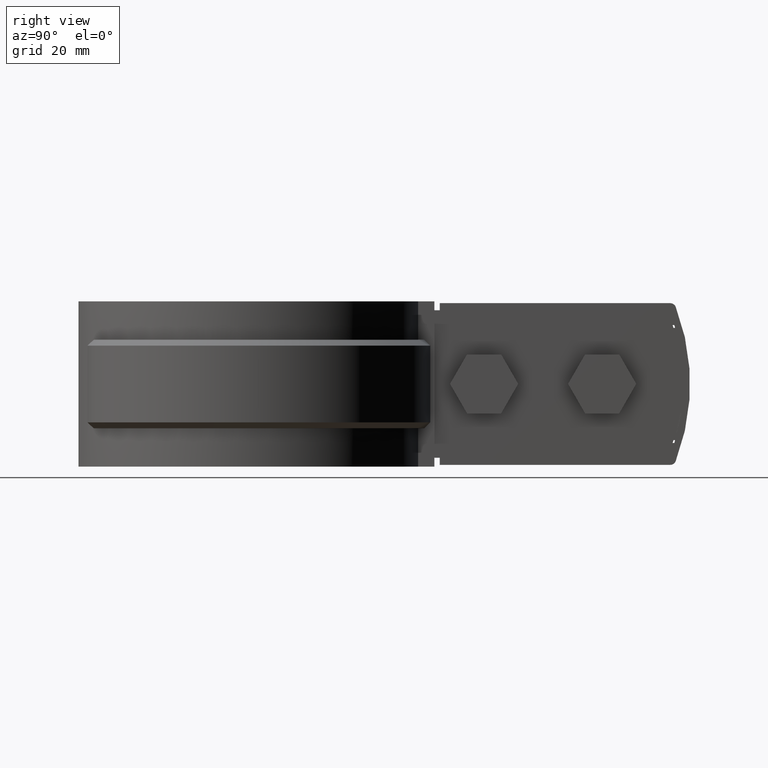
[diagram: clean part render]
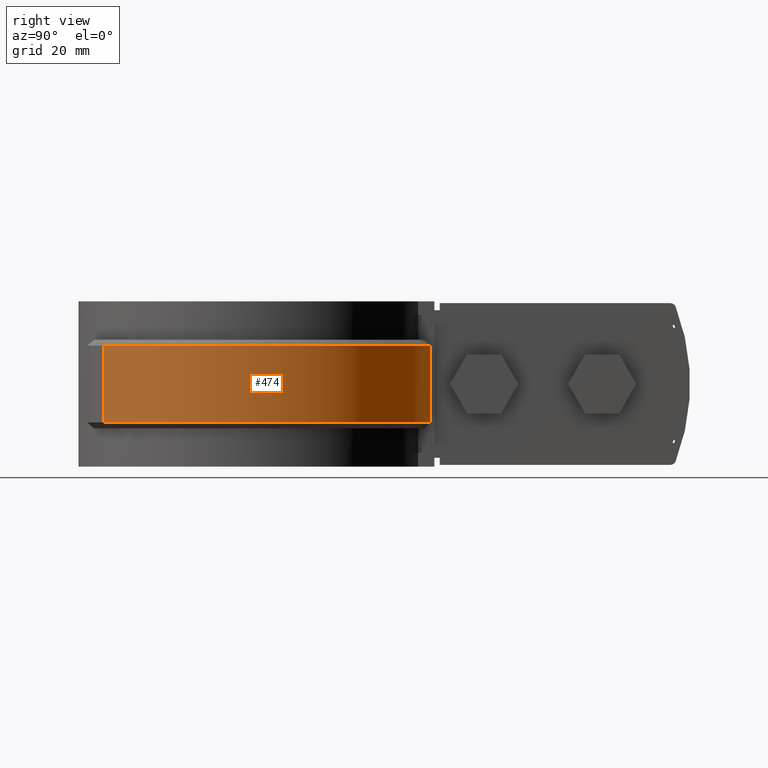
[diagram: same view with one face highlighted and labeled with its STEP entity id]
A machine part, right view. The second image highlights one B-rep face of the part: STEP entity #474.
In plain terms, the highlighted cylindrical surface (partial cylindrical patch) has radius 31.095 mm, axis along (0, 0, -1).
Its self-contained STEP definition (entity closure, byte-faithful):
#474 = ADVANCED_FACE( '', ( #960 ), #961, .T. );
#960 = FACE_OUTER_BOUND( '', #2306, .T. );
#961 = CYLINDRICAL_SURFACE( '', #2307, 31.0950000000000 );
#2306 = EDGE_LOOP( '', ( #4966, #4967, #4968, #4969 ) );
#2307 = AXIS2_PLACEMENT_3D( '', #4970, #4971, #4972 );
#4966 = ORIENTED_EDGE( '', *, *, #7532, .T. );
#4967 = ORIENTED_EDGE( '', *, *, #7576, .T. );
#4968 = ORIENTED_EDGE( '', *, *, #7573, .F. );
#4969 = ORIENTED_EDGE( '', *, *, #7577, .T. );
#4970 = CARTESIAN_POINT( '', ( 0.000000000000000, 0.000000000000000, -20.0000000000000 ) );
#4971 = DIRECTION( '', ( 0.000000000000000, 0.000000000000000, -1.00000000000000 ) );
#4972 = DIRECTION( '', ( 0.318481140115505, 0.947929197456608, 0.000000000000000 ) );
#7532 = EDGE_CURVE( '', #8743, #8744, #8745, .T. );
#7573 = EDGE_CURVE( '', #8813, #8814, #8815, .T. );
#7576 = EDGE_CURVE( '', #8744, #8814, #8818, .F. );
#7577 = EDGE_CURVE( '', #8813, #8743, #8819, .T. );
#8743 = VERTEX_POINT( '', #12258 );
#8744 = VERTEX_POINT( '', #12259 );
#8745 = LINE( '', #12260, #12261 );
#8813 = VERTEX_POINT( '', #12370 );
#8814 = VERTEX_POINT( '', #12371 );
#8815 = LINE( '', #12372, #12373 );
#8818 = CIRCLE( '', #12376, 31.0950000000000 );
#8819 = CIRCLE( '', #12377, 31.0950000000000 );
#12258 = CARTESIAN_POINT( '', ( 6.09999999999998, 30.4908023016778, -19.0000000000000 ) );
#12259 = CARTESIAN_POINT( '', ( 6.09999999999998, 30.4908023016778, -6.00000000000000 ) );
#12260 = CARTESIAN_POINT( '', ( 6.09999999999998, 30.4908023016778, -20.0000000000000 ) );
#12261 = VECTOR( '', #14232, 1000.00000000000 );
#12370 = CARTESIAN_POINT( '', ( 18.6948570380802, -24.8475621606173, -19.0000000000000 ) );
#12371 = CARTESIAN_POINT( '', ( 18.6948570380802, -24.8475621606173, -6.00000000000000 ) );
#12372 = CARTESIAN_POINT( '', ( 18.6948570380802, -24.8475621606173, -20.0000000000000 ) );
#12373 = VECTOR( '', #14295, 1000.00000000000 );
#12376 = AXIS2_PLACEMENT_3D( '', #14302, #14303, #14304 );
#12377 = AXIS2_PLACEMENT_3D( '', #14305, #14306, #14307 );
#14232 = DIRECTION( '', ( 0.000000000000000, 0.000000000000000, 1.00000000000000 ) );
#14295 = DIRECTION( '', ( 0.000000000000000, 0.000000000000000, 1.00000000000000 ) );
#14302 = CARTESIAN_POINT( '', ( 0.000000000000000, 0.000000000000000, -6.00000000000000 ) );
#14303 = DIRECTION( '', ( 0.000000000000000, 0.000000000000000, 1.00000000000000 ) );
#14304 = DIRECTION( '', ( 1.00000000000000, 0.000000000000000, 0.000000000000000 ) );
#14305 = CARTESIAN_POINT( '', ( 0.000000000000000, 0.000000000000000, -19.0000000000000 ) );
#14306 = DIRECTION( '', ( 0.000000000000000, 0.000000000000000, 1.00000000000000 ) );
#14307 = DIRECTION( '', ( 1.00000000000000, 0.000000000000000, 0.000000000000000 ) );